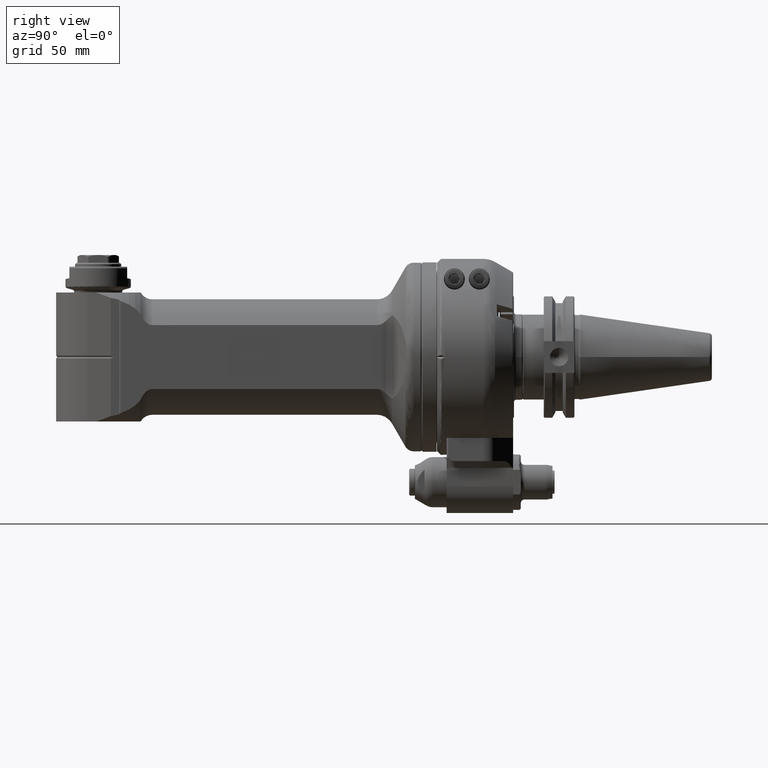
[diagram: clean part render]
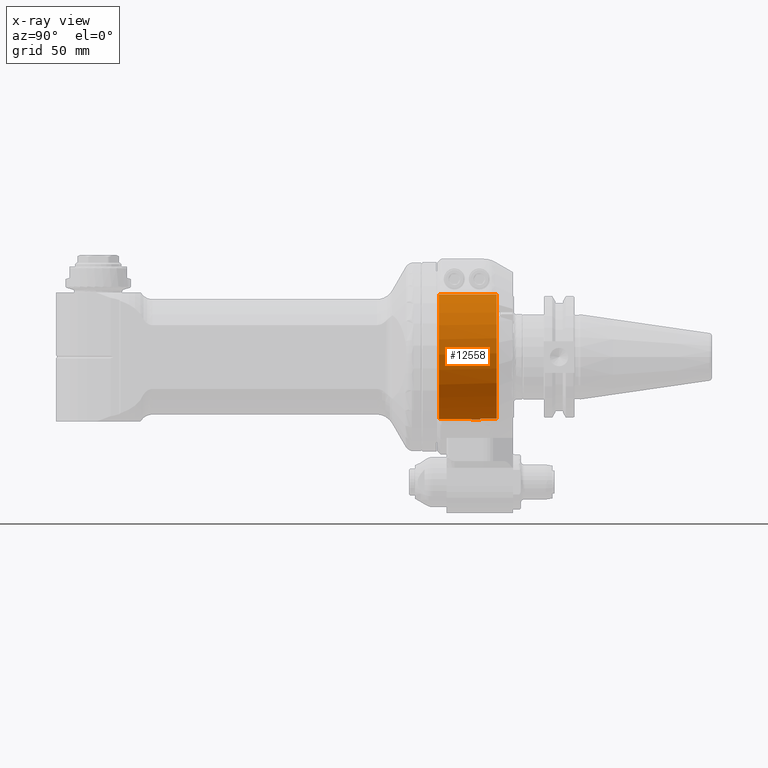
[diagram: x-ray — body ghosted, one internal face saturated and labeled with its STEP entity id]
A machine part, right view, then the same camera in x-ray: the body is ghosted and one INTERNAL B-rep face — a face not visible from any outside direction — is saturated and labeled: STEP entity #12558.
In plain terms, the highlighted cylindrical surface (partial cylindrical patch) has radius 32.5 mm, axis along (0, -1, 0).
Its self-contained STEP definition (entity closure, byte-faithful):
#616=CYLINDRICAL_SURFACE('',#13728,32.5);
#1200=CIRCLE('',#13679,32.5);
#1222=CIRCLE('',#13729,32.5);
#1223=CIRCLE('',#13730,32.5);
#1224=CIRCLE('',#13731,32.5);
#1874=FACE_OUTER_BOUND('',#2661,.T.);
#2661=EDGE_LOOP('',(#10374,#10375,#10376,#10377,#10378,#10379,#10380,#10381));
#3643=LINE('',#22455,#4602);
#3644=LINE('',#22458,#4603);
#3645=LINE('',#22462,#4604);
#3646=LINE('',#22466,#4605);
#4602=VECTOR('',#16536,8.5);
#4603=VECTOR('',#16539,8.5);
#4604=VECTOR('',#16542,30.);
#4605=VECTOR('',#16545,29.99999999998);
#5759=VERTEX_POINT('',#21563);
#5760=VERTEX_POINT('',#21565);
#5798=VERTEX_POINT('',#22453);
#5799=VERTEX_POINT('',#22457);
#5800=VERTEX_POINT('',#22459);
#5801=VERTEX_POINT('',#22461);
#5802=VERTEX_POINT('',#22463);
#5803=VERTEX_POINT('',#22465);
#7343=EDGE_CURVE('',#5760,#5759,#1200,.T.);
#7413=EDGE_CURVE('',#5759,#5798,#3643,.T.);
#7414=EDGE_CURVE('',#5760,#5799,#3644,.T.);
#7415=EDGE_CURVE('',#5800,#5798,#1222,.T.);
#7416=EDGE_CURVE('',#5800,#5801,#3645,.T.);
#7417=EDGE_CURVE('',#5802,#5801,#1223,.T.);
#7418=EDGE_CURVE('',#5802,#5803,#3646,.T.);
#7419=EDGE_CURVE('',#5799,#5803,#1224,.T.);
#10374=ORIENTED_EDGE('',*,*,#7414,.F.);
#10375=ORIENTED_EDGE('',*,*,#7343,.T.);
#10376=ORIENTED_EDGE('',*,*,#7413,.T.);
#10377=ORIENTED_EDGE('',*,*,#7415,.F.);
#10378=ORIENTED_EDGE('',*,*,#7416,.T.);
#10379=ORIENTED_EDGE('',*,*,#7417,.F.);
#10380=ORIENTED_EDGE('',*,*,#7418,.T.);
#10381=ORIENTED_EDGE('',*,*,#7419,.F.);
#12558=ADVANCED_FACE('',(#1874),#616,.F.);
#13679=AXIS2_PLACEMENT_3D('',#21566,#16405,#16406);
#13728=AXIS2_PLACEMENT_3D('',#22456,#16537,#16538);
#13729=AXIS2_PLACEMENT_3D('',#22460,#16540,#16541);
#13730=AXIS2_PLACEMENT_3D('',#22464,#16543,#16544);
#13731=AXIS2_PLACEMENT_3D('',#22467,#16546,#16547);
#16405=DIRECTION('center_axis',(0.,1.,0.));
#16406=DIRECTION('ref_axis',(0.164179104477598,0.,-0.986430545782588));
#16536=DIRECTION('',(0.,1.,0.));
#16537=DIRECTION('center_axis',(0.,-1.,0.));
#16538=DIRECTION('ref_axis',(1.38678298153134E-13,0.,-1.));
#16539=DIRECTION('',(0.,1.,0.));
#16540=DIRECTION('center_axis',(0.,-1.,0.));
#16541=DIRECTION('ref_axis',(-0.0461538461538519,0.,0.998934343430642));
#16542=DIRECTION('',(0.,-1.,0.));
#16543=DIRECTION('center_axis',(0.,1.,0.));
#16544=DIRECTION('ref_axis',(0.,0.,-1.));
#16545=DIRECTION('',(3.148370453234E-13,1.,-1.421085471521E-14));
#16546=DIRECTION('center_axis',(0.,-1.,0.));
#16547=DIRECTION('ref_axis',(0.164179104477598,0.,-0.986430545782588));
#21563=CARTESIAN_POINT('',(-5.335820895522,22.5,-32.05899273793));
#21565=CARTESIAN_POINT('',(5.335820895522,22.5,-32.05899273793));
#21566=CARTESIAN_POINT('Origin',(0.,22.5,0.));
#22453=CARTESIAN_POINT('',(-5.335820895522,31.,-32.05899273793));
#22455=CARTESIAN_POINT('',(-5.335820895522,22.5,-32.05899273793));
#22456=CARTESIAN_POINT('Origin',(0.,16.5,0.));
#22457=CARTESIAN_POINT('',(5.335820895522,31.,-32.05899273793));
#22458=CARTESIAN_POINT('',(5.335820895522,22.5,-32.05899273793));
#22459=CARTESIAN_POINT('',(-1.5,31.,32.4653661615));
#22460=CARTESIAN_POINT('Origin',(0.,31.,0.));
#22461=CARTESIAN_POINT('',(-1.5,1.,32.4653661615));
#22462=CARTESIAN_POINT('',(-1.5,31.,32.4653661615));
#22463=CARTESIAN_POINT('',(1.499999999991,1.000000000023,32.4653661615));
#22464=CARTESIAN_POINT('Origin',(0.,0.9999999999999,0.));
#22465=CARTESIAN_POINT('',(1.5,31.,32.4653661615));
#22466=CARTESIAN_POINT('',(1.499999999991,1.000000000023,32.4653661615));
#22467=CARTESIAN_POINT('Origin',(0.,31.,0.));